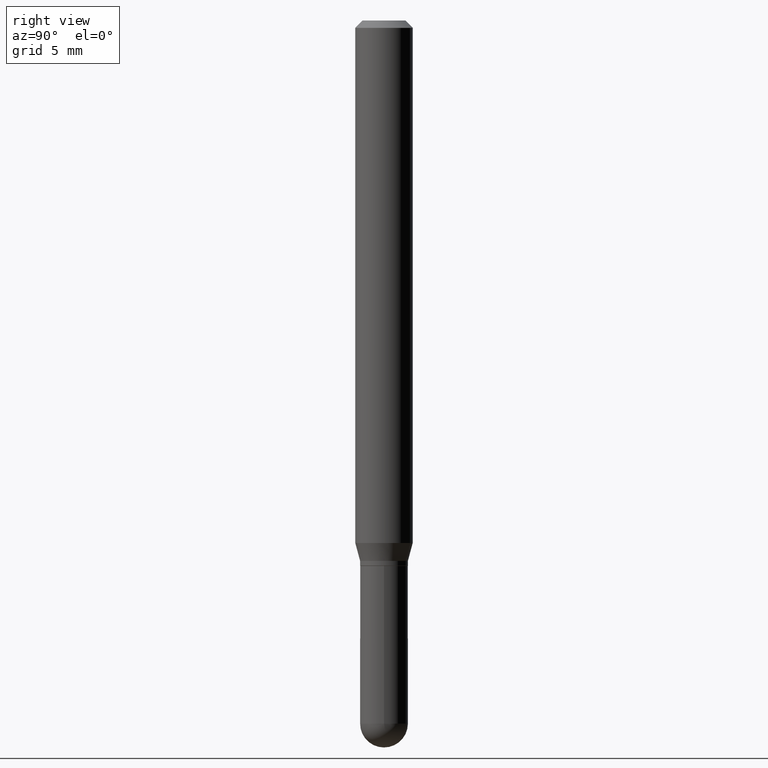
[diagram: clean part render]
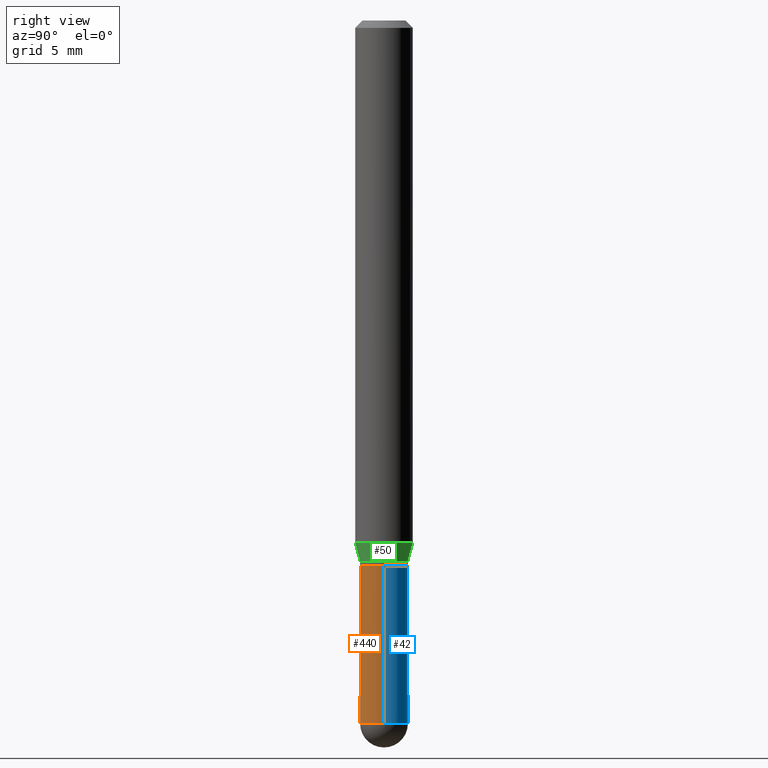
[diagram: same view with three faces highlighted in distinct colors, each labeled with its STEP entity id]
A machine part, right view with three faces highlighted in distinct colors.
Their STEP definitions:

[orange] entity #440 — the highlighted cylindrical surface (edge-blend (fillet) strip) has radius 1.2497 mm, axis along (-0, 0, 1).
#5 = DIRECTION ( 'NONE',  ( 1.000000000000000000, -6.982962677686261977E-15, 0.000000000000000000 ) ) ;
#23 = CIRCLE ( 'NONE', #344, 0.04920000000000000068 ) ;
#38 = CARTESIAN_POINT ( 'NONE',  ( 3.538348815669273817E-29, -5.051824349172146609E-15, -1.446899999999999853 ) ) ;
#47 = DIRECTION ( 'NONE',  ( -2.445468806185136597E-29, 3.491481338843145583E-15, 1.000000000000000000 ) ) ;
#78 = VECTOR ( 'NONE', #489, 39.37007874015748143 ) ;
#115 = DIRECTION ( 'NONE',  ( 1.000000000000000000, -6.982962677686261977E-15, 0.000000000000000000 ) ) ;
#125 = CIRCLE ( 'NONE', #418, 0.04920000000000000068 ) ;
#132 = DIRECTION ( 'NONE',  ( 1.000000000000000000, -6.982962677686261977E-15, 0.000000000000000000 ) ) ;
#170 = CARTESIAN_POINT ( 'NONE',  ( -0.04920000000000000068, -4.135220753750050718E-15, -1.122099999999999875 ) ) ;
#180 = LINE ( 'NONE', #224, #78 ) ;
#191 = DIRECTION ( 'NONE',  ( -2.445468806185136877E-29, 3.491481338843145188E-15, 1.000000000000000000 ) ) ;
#204 = CARTESIAN_POINT ( 'NONE',  ( 0.04920000000000000068, -4.261352974058057450E-15, -1.122099999999999875 ) ) ;
#205 = FACE_OUTER_BOUND ( 'NONE', #397, .T. ) ;
#209 = DIRECTION ( 'NONE',  ( 1.000000000000000000, -6.982962677686266711E-15, 4.876176775795935793E-29 ) ) ;
#224 = CARTESIAN_POINT ( 'NONE',  ( 0.04920000000000000068, -3.435617637421643269E-16, 2.399078973691600472E-30 ) ) ;
#233 = EDGE_CURVE ( 'NONE', #359, #442, #496, .T. ) ;
#239 = VERTEX_POINT ( 'NONE', #348 ) ;
#242 = DIRECTION ( 'NONE',  ( -2.445468806185136597E-29, 3.491481338843145583E-15, 1.000000000000000000 ) ) ;
#249 = CARTESIAN_POINT ( 'NONE',  ( 0.000000000000000000, 0.000000000000000000, 0.000000000000000000 ) ) ;
#255 = CIRCLE ( 'NONE', #452, 0.04920000000000000068 ) ;
#257 = ORIENTED_EDGE ( 'NONE', *, *, #338, .T. ) ;
#279 = CYLINDRICAL_SURFACE ( 'NONE', #401, 0.04920000000000000068 ) ;
#284 = DIRECTION ( 'NONE',  ( -2.445468806185136597E-29, 3.491481338843145583E-15, 1.000000000000000000 ) ) ;
#291 = EDGE_CURVE ( 'NONE', #442, #371, #255, .T. ) ;
#321 = CARTESIAN_POINT ( 'NONE',  ( -3.435617637421291240E-16, -0.04920000000000508689, -1.446899999999999631 ) ) ;
#338 = EDGE_CURVE ( 'NONE', #379, #239, #23, .T. ) ;
#344 = AXIS2_PLACEMENT_3D ( 'NONE', #38, #242, #5 ) ;
#345 = CARTESIAN_POINT ( 'NONE',  ( -0.04920000000000000068, 3.495870259939692963E-16, -2.420116064405413767E-30 ) ) ;
#348 = CARTESIAN_POINT ( 'NONE',  ( 0.04920000000000000068, -4.828369543486183897E-15, -1.446899999999999853 ) ) ;
#349 = VECTOR ( 'NONE', #191, 39.37007874015748143 ) ;
#356 = ORIENTED_EDGE ( 'NONE', *, *, #291, .F. ) ;
#359 = VERTEX_POINT ( 'NONE', #470 ) ;
#371 = VERTEX_POINT ( 'NONE', #204 ) ;
#379 = VERTEX_POINT ( 'NONE', #321 ) ;
#395 = ORIENTED_EDGE ( 'NONE', *, *, #468, .T. ) ;
#397 = EDGE_LOOP ( 'NONE', ( #478, #435, #257, #395, #356 ) ) ;
#401 = AXIS2_PLACEMENT_3D ( 'NONE', #249, #47, #209 ) ;
#408 = CARTESIAN_POINT ( 'NONE',  ( 3.538348815669273817E-29, -5.051824349172146609E-15, -1.446899999999999853 ) ) ;
#418 = AXIS2_PLACEMENT_3D ( 'NONE', #408, #284, #132 ) ;
#428 = CARTESIAN_POINT ( 'NONE',  ( 2.744060547420341208E-29, -3.917791210315892926E-15, -1.122099999999999875 ) ) ;
#435 = ORIENTED_EDGE ( 'NONE', *, *, #506, .T. ) ;
#440 = ADVANCED_FACE ( 'NONE', ( #205 ), #279, .T. ) ;
#442 = VERTEX_POINT ( 'NONE', #170 ) ;
#452 = AXIS2_PLACEMENT_3D ( 'NONE', #428, #467, #115 ) ;
#467 = DIRECTION ( 'NONE',  ( -2.445468806185136597E-29, 3.491481338843145583E-15, 1.000000000000000000 ) ) ;
#468 = EDGE_CURVE ( 'NONE', #239, #371, #180, .T. ) ;
#470 = CARTESIAN_POINT ( 'NONE',  ( -0.04920000000000000068, -4.135220753750050718E-15, -1.446899999999999853 ) ) ;
#478 = ORIENTED_EDGE ( 'NONE', *, *, #233, .F. ) ;
#489 = DIRECTION ( 'NONE',  ( -2.445468806185136877E-29, 3.491481338843145188E-15, 1.000000000000000000 ) ) ;
#496 = LINE ( 'NONE', #345, #349 ) ;
#506 = EDGE_CURVE ( 'NONE', #359, #379, #125, .T. ) ;

[blue] entity #42 — the highlighted cylindrical surface (edge-blend (fillet) strip) has radius 1.2497 mm, axis along (-0, 0, 1).
#2 = DIRECTION ( 'NONE',  ( -2.445468806185136597E-29, 3.491481338843145583E-15, 1.000000000000000000 ) ) ;
#27 = DIRECTION ( 'NONE',  ( 1.000000000000000000, -6.982962677686261977E-15, 0.000000000000000000 ) ) ;
#42 = ADVANCED_FACE ( 'NONE', ( #124 ), #364, .T. ) ;
#54 = ORIENTED_EDGE ( 'NONE', *, *, #448, .T. ) ;
#60 = CARTESIAN_POINT ( 'NONE',  ( 0.000000000000000000, 0.000000000000000000, 0.000000000000000000 ) ) ;
#78 = VECTOR ( 'NONE', #489, 39.37007874015748143 ) ;
#123 = AXIS2_PLACEMENT_3D ( 'NONE', #60, #2, #143 ) ;
#124 = FACE_OUTER_BOUND ( 'NONE', #471, .T. ) ;
#129 = DIRECTION ( 'NONE',  ( -2.445468806185136597E-29, 3.491481338843145583E-15, 1.000000000000000000 ) ) ;
#143 = DIRECTION ( 'NONE',  ( 1.000000000000000000, -6.982962677686266711E-15, 4.876176775795935793E-29 ) ) ;
#144 = AXIS2_PLACEMENT_3D ( 'NONE', #477, #129, #280 ) ;
#170 = CARTESIAN_POINT ( 'NONE',  ( -0.04920000000000000068, -4.135220753750050718E-15, -1.122099999999999875 ) ) ;
#180 = LINE ( 'NONE', #224, #78 ) ;
#188 = CARTESIAN_POINT ( 'NONE',  ( 3.495870259940048443E-16, 0.04919999999999498386, -1.446900000000000075 ) ) ;
#191 = DIRECTION ( 'NONE',  ( -2.445468806185136877E-29, 3.491481338843145188E-15, 1.000000000000000000 ) ) ;
#198 = ORIENTED_EDGE ( 'NONE', *, *, #376, .F. ) ;
#204 = CARTESIAN_POINT ( 'NONE',  ( 0.04920000000000000068, -4.261352974058057450E-15, -1.122099999999999875 ) ) ;
#211 = VERTEX_POINT ( 'NONE', #188 ) ;
#224 = CARTESIAN_POINT ( 'NONE',  ( 0.04920000000000000068, -3.435617637421643269E-16, 2.399078973691600472E-30 ) ) ;
#225 = EDGE_CURVE ( 'NONE', #211, #359, #282, .T. ) ;
#232 = CARTESIAN_POINT ( 'NONE',  ( 3.538348815669273817E-29, -5.051824349172146609E-15, -1.446899999999999853 ) ) ;
#233 = EDGE_CURVE ( 'NONE', #359, #442, #496, .T. ) ;
#239 = VERTEX_POINT ( 'NONE', #348 ) ;
#269 = ORIENTED_EDGE ( 'NONE', *, *, #225, .T. ) ;
#273 = ORIENTED_EDGE ( 'NONE', *, *, #468, .F. ) ;
#280 = DIRECTION ( 'NONE',  ( 1.000000000000000000, -6.982962677686261977E-15, 0.000000000000000000 ) ) ;
#282 = CIRCLE ( 'NONE', #507, 0.04920000000000000068 ) ;
#294 = AXIS2_PLACEMENT_3D ( 'NONE', #437, #360, #315 ) ;
#302 = CIRCLE ( 'NONE', #144, 0.04920000000000000068 ) ;
#315 = DIRECTION ( 'NONE',  ( 1.000000000000000000, -6.982962677686261977E-15, 0.000000000000000000 ) ) ;
#320 = ORIENTED_EDGE ( 'NONE', *, *, #233, .T. ) ;
#345 = CARTESIAN_POINT ( 'NONE',  ( -0.04920000000000000068, 3.495870259939692963E-16, -2.420116064405413767E-30 ) ) ;
#348 = CARTESIAN_POINT ( 'NONE',  ( 0.04920000000000000068, -4.828369543486183897E-15, -1.446899999999999853 ) ) ;
#349 = VECTOR ( 'NONE', #191, 39.37007874015748143 ) ;
#359 = VERTEX_POINT ( 'NONE', #470 ) ;
#360 = DIRECTION ( 'NONE',  ( -2.445468806185136597E-29, 3.491481338843145583E-15, 1.000000000000000000 ) ) ;
#364 = CYLINDRICAL_SURFACE ( 'NONE', #123, 0.04920000000000000068 ) ;
#371 = VERTEX_POINT ( 'NONE', #204 ) ;
#376 = EDGE_CURVE ( 'NONE', #371, #442, #387, .T. ) ;
#387 = CIRCLE ( 'NONE', #294, 0.04920000000000000068 ) ;
#437 = CARTESIAN_POINT ( 'NONE',  ( 2.744060547420341208E-29, -3.917791210315892926E-15, -1.122099999999999875 ) ) ;
#442 = VERTEX_POINT ( 'NONE', #170 ) ;
#448 = EDGE_CURVE ( 'NONE', #239, #211, #302, .T. ) ;
#468 = EDGE_CURVE ( 'NONE', #239, #371, #180, .T. ) ;
#470 = CARTESIAN_POINT ( 'NONE',  ( -0.04920000000000000068, -4.135220753750050718E-15, -1.446899999999999853 ) ) ;
#471 = EDGE_LOOP ( 'NONE', ( #269, #320, #198, #273, #54 ) ) ;
#477 = CARTESIAN_POINT ( 'NONE',  ( 3.538348815669273817E-29, -5.051824349172146609E-15, -1.446899999999999853 ) ) ;
#489 = DIRECTION ( 'NONE',  ( -2.445468806185136877E-29, 3.491481338843145188E-15, 1.000000000000000000 ) ) ;
#494 = DIRECTION ( 'NONE',  ( -2.445468806185136597E-29, 3.491481338843145583E-15, 1.000000000000000000 ) ) ;
#496 = LINE ( 'NONE', #345, #349 ) ;
#507 = AXIS2_PLACEMENT_3D ( 'NONE', #232, #494, #27 ) ;

[green] entity #50 — the highlighted conical surface has half-angle 15 deg.
#3 = AXIS2_PLACEMENT_3D ( 'NONE', #433, #74, #396 ) ;
#10 = VERTEX_POINT ( 'NONE', #451 ) ;
#18 = EDGE_LOOP ( 'NONE', ( #480, #438, #165, #86 ) ) ;
#19 = VERTEX_POINT ( 'NONE', #83 ) ;
#22 = CARTESIAN_POINT ( 'NONE',  ( 2.719686043049122243E-29, -3.882761569318704737E-15, -1.112099999999999866 ) ) ;
#50 = ADVANCED_FACE ( 'NONE', ( #417 ), #228, .T. ) ;
#59 = CARTESIAN_POINT ( 'NONE',  ( -3.435617637421385410E-16, -0.04920000000000408769, -1.112099999999999644 ) ) ;
#67 = EDGE_CURVE ( 'NONE', #245, #10, #409, .T. ) ;
#72 = DIRECTION ( 'NONE',  ( 1.839019923739597160E-15, 0.2588190451025245142, 0.9659258262890673130 ) ) ;
#74 = DIRECTION ( 'NONE',  ( -2.445540907336680445E-29, 3.491378085890391934E-15, 1.000000000000000000 ) ) ;
#83 = CARTESIAN_POINT ( 'NONE',  ( -4.123439461173478031E-16, -0.05905000000000376614, -1.075339299545447158 ) ) ;
#86 = ORIENTED_EDGE ( 'NONE', *, *, #456, .F. ) ;
#92 = LINE ( 'NONE', #59, #497 ) ;
#133 = AXIS2_PLACEMENT_3D ( 'NONE', #258, #292, #420 ) ;
#135 = DIRECTION ( 'NONE',  ( -1.807323732225326984E-15, -0.2588190451025177419, 0.9659258262890690894 ) ) ;
#150 = CARTESIAN_POINT ( 'NONE',  ( -3.435617637421385410E-16, -0.04920000000000408769, -1.112099999999999644 ) ) ;
#165 = ORIENTED_EDGE ( 'NONE', *, *, #309, .F. ) ;
#189 = VERTEX_POINT ( 'NONE', #195 ) ;
#195 = CARTESIAN_POINT ( 'NONE',  ( 4.195754854663652789E-16, 0.05904999999999623744, -1.075339299545447380 ) ) ;
#196 = EDGE_CURVE ( 'NONE', #10, #189, #235, .T. ) ;
#206 = DIRECTION ( 'NONE',  ( -6.982962677686265922E-15, -1.000000000000000000, 2.776268286244158643E-15 ) ) ;
#228 = CONICAL_SURFACE ( 'NONE', #133, 0.04920000000000020191, 0.2617993877991497964 ) ;
#235 = LINE ( 'NONE', #431, #491 ) ;
#236 = CIRCLE ( 'NONE', #3, 0.05904999999999999832 ) ;
#245 = VERTEX_POINT ( 'NONE', #150 ) ;
#248 = DIRECTION ( 'NONE',  ( -2.445540907336680445E-29, 3.491378085890391934E-15, 1.000000000000000000 ) ) ;
#258 = CARTESIAN_POINT ( 'NONE',  ( 2.719686043049122243E-29, -3.882761569318704737E-15, -1.112099999999999866 ) ) ;
#292 = DIRECTION ( 'NONE',  ( -2.445540907336680445E-29, 3.491378085890391934E-15, 1.000000000000000000 ) ) ;
#309 = EDGE_CURVE ( 'NONE', #19, #189, #236, .T. ) ;
#322 = AXIS2_PLACEMENT_3D ( 'NONE', #22, #248, #206 ) ;
#396 = DIRECTION ( 'NONE',  ( -6.982962677686265922E-15, -1.000000000000000000, 4.626330217890369336E-15 ) ) ;
#409 = CIRCLE ( 'NONE', #322, 0.04920000000000020191 ) ;
#417 = FACE_OUTER_BOUND ( 'NONE', #18, .T. ) ;
#420 = DIRECTION ( 'NONE',  ( -6.982962677686265922E-15, -1.000000000000000000, 2.776268286244158643E-15 ) ) ;
#431 = CARTESIAN_POINT ( 'NONE',  ( 3.495870259939978432E-16, 0.04919999999999632306, -1.112100000000000088 ) ) ;
#433 = CARTESIAN_POINT ( 'NONE',  ( 2.629786246305163697E-29, -3.754416065329698001E-15, -1.075339299545447158 ) ) ;
#438 = ORIENTED_EDGE ( 'NONE', *, *, #196, .T. ) ;
#451 = CARTESIAN_POINT ( 'NONE',  ( 3.845812557301816843E-16, 0.04919999999999632306, -1.112100000000000088 ) ) ;
#456 = EDGE_CURVE ( 'NONE', #245, #19, #92, .T. ) ;
#480 = ORIENTED_EDGE ( 'NONE', *, *, #67, .T. ) ;
#491 = VECTOR ( 'NONE', #72, 39.37007874015748143 ) ;
#497 = VECTOR ( 'NONE', #135, 39.37007874015748143 ) ;